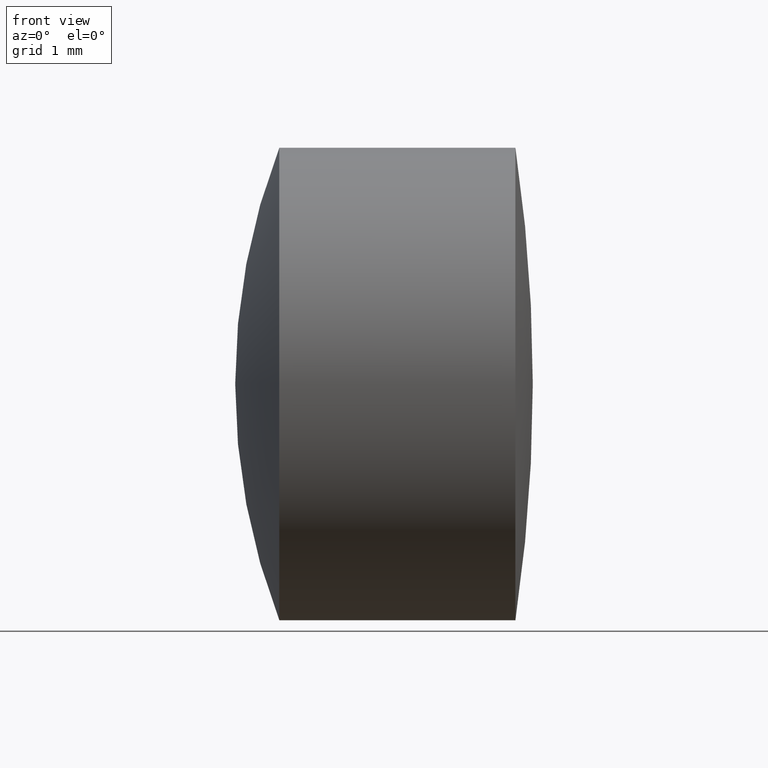
[diagram: clean part render]
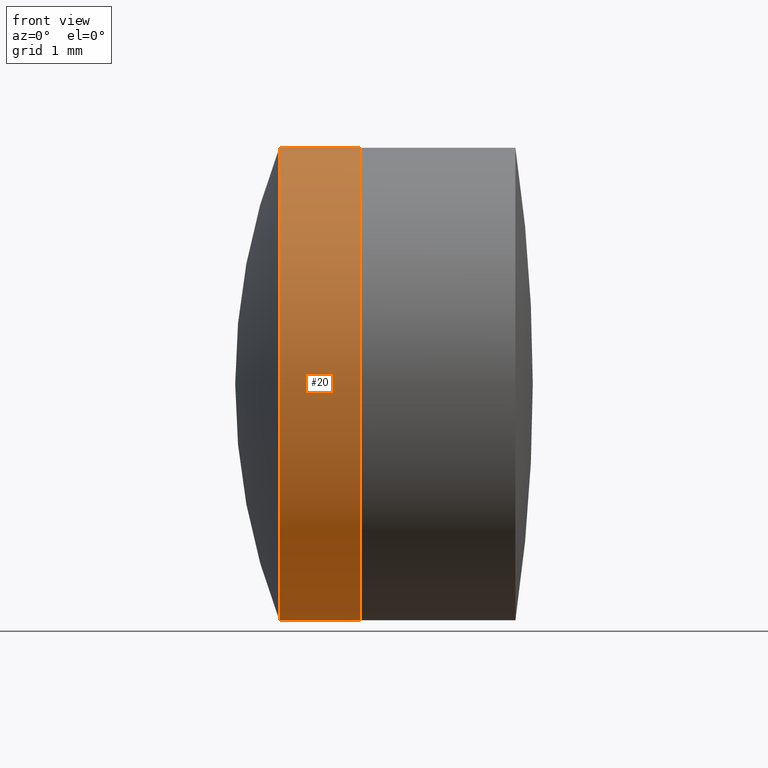
[diagram: same view with one face highlighted and labeled with its STEP entity id]
A machine part, front view. The second image highlights one B-rep face of the part: STEP entity #20.
In plain terms, the highlighted cylindrical surface (partial cylindrical patch) has radius 3.175 mm, axis along (-1, -0, -0).
Its self-contained STEP definition (entity closure, byte-faithful):
#5 = CIRCLE ( 'NONE', #19, 3.175000000000000300 ) ;
#12 = DIRECTION ( 'NONE',  ( -1.000000000000000000, -0.0000000000000000000, -0.0000000000000000000 ) ) ;
#14 = VERTEX_POINT ( 'NONE', #37 ) ;
#19 = AXIS2_PLACEMENT_3D ( 'NONE', #225, #36, #200 ) ;
#20 = ADVANCED_FACE ( 'NONE', ( #49 ), #53, .T. ) ;
#30 = CARTESIAN_POINT ( 'NONE',  ( -9.702612178336682500, 0.0000000000000000000, 3.175000000000000300 ) ) ;
#37 = CARTESIAN_POINT ( 'NONE',  ( -0.3598363093995273800, 0.0000000000000000000, -3.174999999999998500 ) ) ;
#36 = DIRECTION ( 'NONE',  ( -1.000000000000000000, -0.0000000000000000000, -0.0000000000000000000 ) ) ;
#38 = VECTOR ( 'NONE', #140, 1000.000000000000000 ) ;
#40 = CARTESIAN_POINT ( 'NONE',  ( -9.702612178336682500, 3.888253587292846600E-016, -3.175000000000000300 ) ) ;
#49 = FACE_OUTER_BOUND ( 'NONE', #273, .T. ) ;
#50 = DIRECTION ( 'NONE',  ( -1.000000000000000000, -0.0000000000000000000, -0.0000000000000000000 ) ) ;
#51 = VERTEX_POINT ( 'NONE', #88 ) ;
#53 = CYLINDRICAL_SURFACE ( 'NONE', #212, 3.175000000000000300 ) ;
#71 = LINE ( 'NONE', #40, #134 ) ;
#76 = ORIENTED_EDGE ( 'NONE', *, *, #205, .F. ) ;
#83 = AXIS2_PLACEMENT_3D ( 'NONE', #141, #315, #172 ) ;
#88 = CARTESIAN_POINT ( 'NONE',  ( -0.3598363093995273800, -3.888253587292844600E-016, 3.174999999999998900 ) ) ;
#90 = ORIENTED_EDGE ( 'NONE', *, *, #92, .T. ) ;
#92 = EDGE_CURVE ( 'NONE', #173, #51, #329, .T. ) ;
#111 = VERTEX_POINT ( 'NONE', #192 ) ;
#115 = CARTESIAN_POINT ( 'NONE',  ( -9.702612178336682500, 0.0000000000000000000, 0.0000000000000000000 ) ) ;
#134 = VECTOR ( 'NONE', #50, 1000.000000000000000 ) ;
#140 = DIRECTION ( 'NONE',  ( -1.000000000000000000, -0.0000000000000000000, -0.0000000000000000000 ) ) ;
#141 = CARTESIAN_POINT ( 'NONE',  ( 0.7335758746331577700, 0.0000000000000000000, 0.0000000000000000000 ) ) ;
#145 = DIRECTION ( 'NONE',  ( 0.0000000000000000000, 0.0000000000000000000, 1.000000000000000000 ) ) ;
#166 = EDGE_CURVE ( 'NONE', #111, #14, #71, .T. ) ;
#172 = DIRECTION ( 'NONE',  ( 0.0000000000000000000, 0.0000000000000000000, 1.000000000000000000 ) ) ;
#173 = VERTEX_POINT ( 'NONE', #264 ) ;
#174 = ORIENTED_EDGE ( 'NONE', *, *, #166, .F. ) ;
#192 = CARTESIAN_POINT ( 'NONE',  ( 0.7335758746331577700, 3.888253587292846600E-016, -3.175000000000000300 ) ) ;
#200 = DIRECTION ( 'NONE',  ( 0.0000000000000000000, 0.0000000000000000000, 1.000000000000000000 ) ) ;
#205 = EDGE_CURVE ( 'NONE', #14, #51, #5, .T. ) ;
#210 = ORIENTED_EDGE ( 'NONE', *, *, #236, .T. ) ;
#212 = AXIS2_PLACEMENT_3D ( 'NONE', #115, #12, #145 ) ;
#225 = CARTESIAN_POINT ( 'NONE',  ( -0.3598363093995273800, 0.0000000000000000000, 0.0000000000000000000 ) ) ;
#236 = EDGE_CURVE ( 'NONE', #111, #173, #274, .T. ) ;
#264 = CARTESIAN_POINT ( 'NONE',  ( 0.7335758746331577700, 0.0000000000000000000, 3.175000000000000300 ) ) ;
#273 = EDGE_LOOP ( 'NONE', ( #174, #210, #90, #76 ) ) ;
#274 = CIRCLE ( 'NONE', #83, 3.175000000000000300 ) ;
#315 = DIRECTION ( 'NONE',  ( -1.000000000000000000, -0.0000000000000000000, -0.0000000000000000000 ) ) ;
#329 = LINE ( 'NONE', #30, #38 ) ;